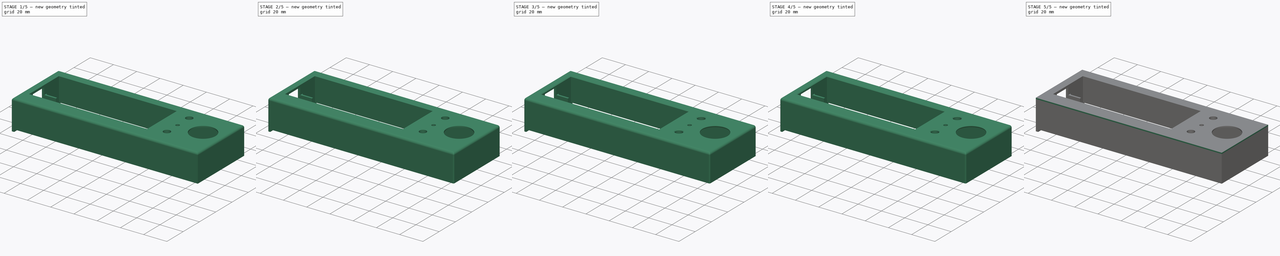
[diagram: build sequence overview — one tinted view per stage of 5, left to right]
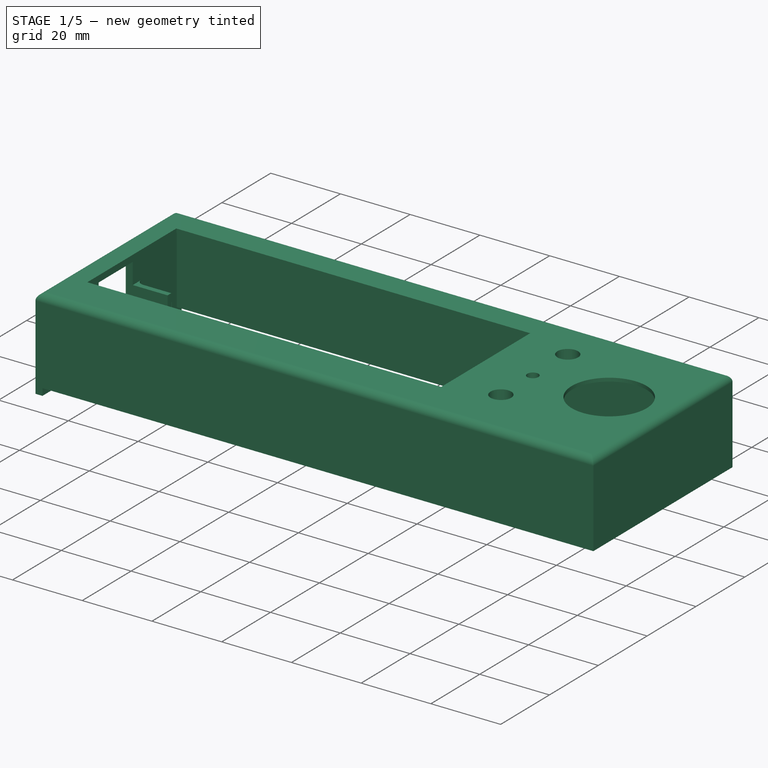
[diagram: stage 1 of 5 — iso view after this stage's code; geometry added in this stage tinted green]
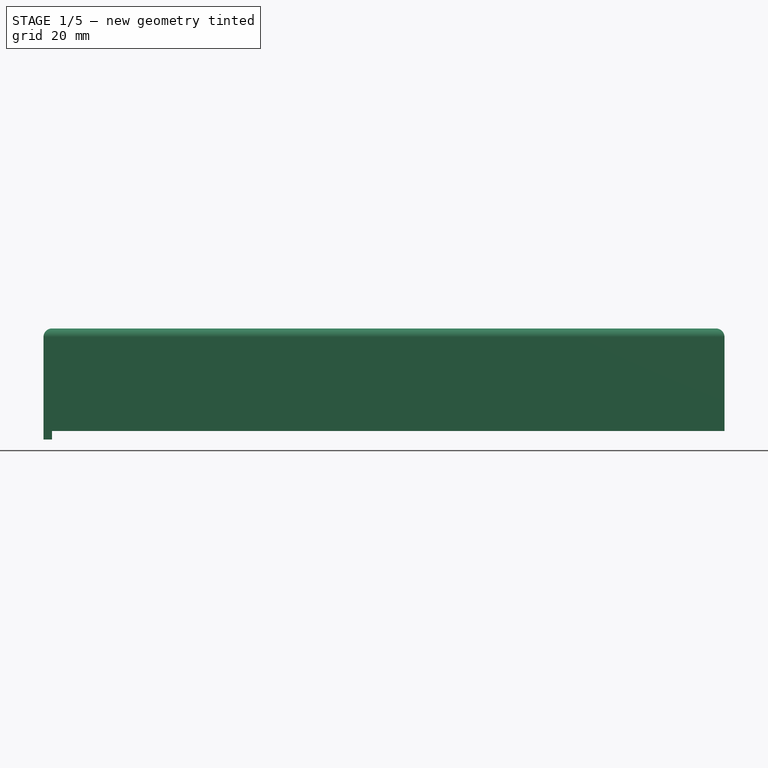
[diagram: stage 1 of 5 — front view after this stage's code; geometry added in this stage tinted green]
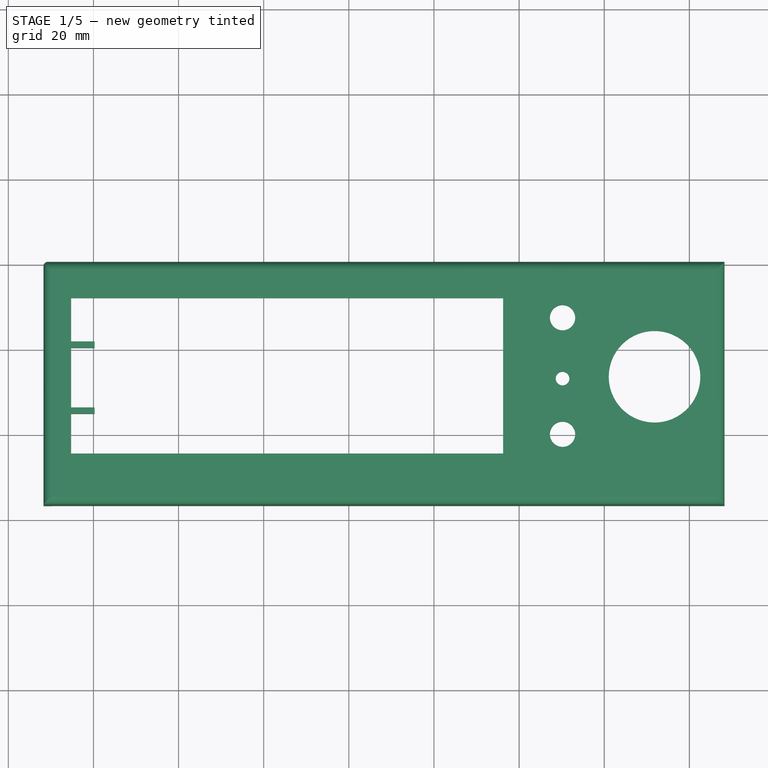
[diagram: stage 1 of 5 — top view after this stage's code; geometry added in this stage tinted green]
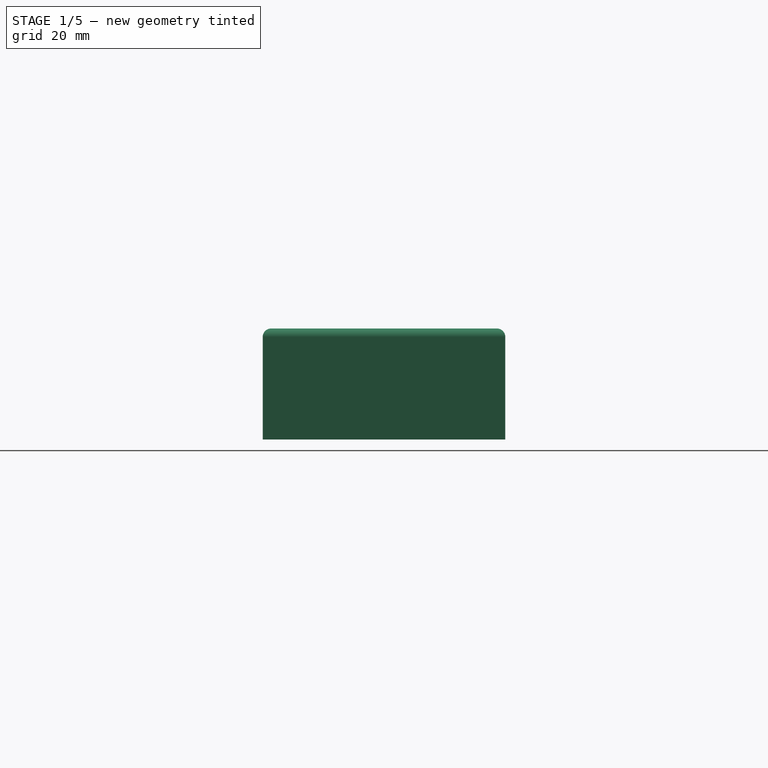
[diagram: stage 1 of 5 — right view after this stage's code; geometry added in this stage tinted green]
FCSTD DOCUMENT  (FreeCAD 0.15R4671 (Git))
Label: top_part
License: All rights reserved
LicenseURL: http://en.wikipedia.org/wiki/All_rights_reserved
objects: Sketcher::SketchObject×11, Part::Feature×11, PartDesign::Fillet×9, PartDesign::Pad×8, PartDesign::Chamfer×4, PartDesign::Pocket×3, Part::MultiFuse×1
note: 58 computed .brp shape members not serialized (recipe doc carries the construction recipe); baked Part::Feature solids carry a one-line shape summary decoded from their .brp

FEATURE [Sketcher::SketchObject] Sketch006
  Placement = pos=(0,0,23.1) rot=(1,0,0;3.14159rad)
  sketch-geometry (4):
    g0: Circle CenterX=80.3715 CenterY=-13.2991 CenterZ=0 NormalX=0 NormalY=0 NormalZ=1 Radius=0.9
    g1: Circle CenterX=80.3715 CenterY=-13.2991 CenterZ=0 NormalX=0 NormalY=0 NormalZ=1 Radius=3
    g2: Circle CenterX=80.3715 CenterY=26.6709 CenterZ=0 NormalX=0 NormalY=0 NormalZ=1 Radius=0.9
    g3: Circle CenterX=80.3715 CenterY=26.6709 CenterZ=0 NormalX=0 NormalY=0 NormalZ=1 Radius=3
  constraints (7):
    c: Radius(g0) = 0.9
    c: Coincident(g1,g0)
    c: Radius(g1) = 3
    c: DistanceY(g2,g0) = -39.97
    c: Radius(g2) = 0.9
    c: Coincident(g3,g2)
    c: Radius(g3) = 3
FEATURE [Part::Feature] Pad002001  label="Pad004"
  shape: bbox 160 x 57 x 26.1 mm, 32 faces (baked)
FEATURE [Part::Feature] Pad002002  label="Pad005"
  shape: bbox 160 x 57 x 26.1 mm, 32 faces (baked)
FEATURE [Part::Feature] Pad002003  label="Pad006"
  shape: bbox 160 x 57 x 26.1 mm, 32 faces (baked)
FEATURE [Part::Feature] Pad002004  label="Pad007"
  shape: bbox 160 x 57 x 26.1 mm, 32 faces (baked)
FEATURE [Part::Feature] Pad002005  label="Pad008"
  shape: bbox 160 x 57 x 26.1 mm, 32 faces (baked)
FEATURE [Part::Feature] Pad002006  label="Pad009"
  shape: bbox 160 x 57 x 26.1 mm, 32 faces (baked)
FEATURE [Part::Feature] Pad002007  label="Pad010"
  shape: bbox 160 x 57 x 26.1 mm, 32 faces (baked)
FEATURE [Part::Feature] Pad002008  label="Pad011"
  shape: bbox 160 x 57 x 26.1 mm, 32 faces (baked)
FEATURE [Part::Feature] Pad002009  label="Pad012"
  shape: bbox 160 x 57 x 26.1 mm, 32 faces (baked)
FEATURE [PartDesign::Fillet] Fillet
  Base = -> Pad002001 [Edge4,Edge2,Edge1,Edge3]
  Radius = 2
FEATURE [PartDesign::Fillet] Fillet001
  Base = -> Fillet [Edge45,Edge47]
  Radius = 1
FEATURE [PartDesign::Pad] Pad002013
  Length = 16.5
  Length2 = 100
  Placement = pos=(0,0,23.1) rot=(1,0,0;3.14159rad)
  Sketch = -> Sketch006
  Type = 0
FEATURE [Sketcher::SketchObject] Sketch012
  Placement = pos=(0,0,23.1) rot=(1,0,0;3.14159rad)
  sketch-geometry (4):
    g0: Circle CenterX=80.3715 CenterY=-13.2991 CenterZ=0 NormalX=0 NormalY=0 NormalZ=1 Radius=0.9
    g1: Circle CenterX=80.3715 CenterY=-13.2991 CenterZ=0 NormalX=0 NormalY=0 NormalZ=1 Radius=5.5
    g2: Circle CenterX=80.3715 CenterY=26.6709 CenterZ=0 NormalX=0 NormalY=0 NormalZ=1 Radius=0.9
    g3: Circle CenterX=80.3715 CenterY=26.6709 CenterZ=0 NormalX=0 NormalY=0 NormalZ=1 Radius=5.5
  constraints (7):
    c: Radius(g0) = 0.9
    c: Coincident(g1,g0)
    c: Radius(g1) = 5.5
    c: DistanceY(g2,g0) = -39.97
    c: Radius(g2) = 0.9
    c: Coincident(g3,g2)
    c: Radius(g3) = 5.5
FEATURE [PartDesign::Pad] Pad002014
  Length = 10
  Length2 = 100
  Placement = pos=(0,0,23.1) rot=(1,0,0;3.14159rad)
  Sketch = -> Sketch012
  Type = 0
FEATURE [Part::Feature] Fillet008_solid  label="Fillet008 (Solid)"
  shape: bbox 160 x 57 x 26.1 mm, 85 faces (baked)
FEATURE [Part::MultiFuse] Fusion
  Shapes = -> [Pad002014,Pad002013,Fillet008_solid]
FEATURE [Part::Feature] Fusion_solid  label="Fusion (Solid)"
  Placement = pos=(8.42933,17.0662,0) rot=(0,0,1;0rad)
  shape: bbox 160 x 57 x 26.1 mm, 101 faces (baked)
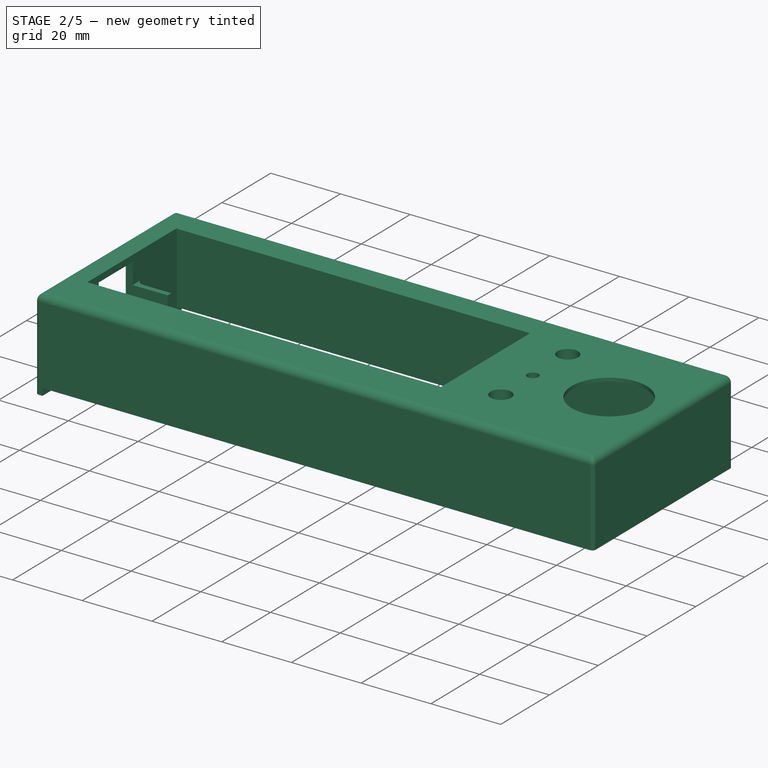
[diagram: stage 2 of 5 — iso view after this stage's code; geometry added in this stage tinted green]
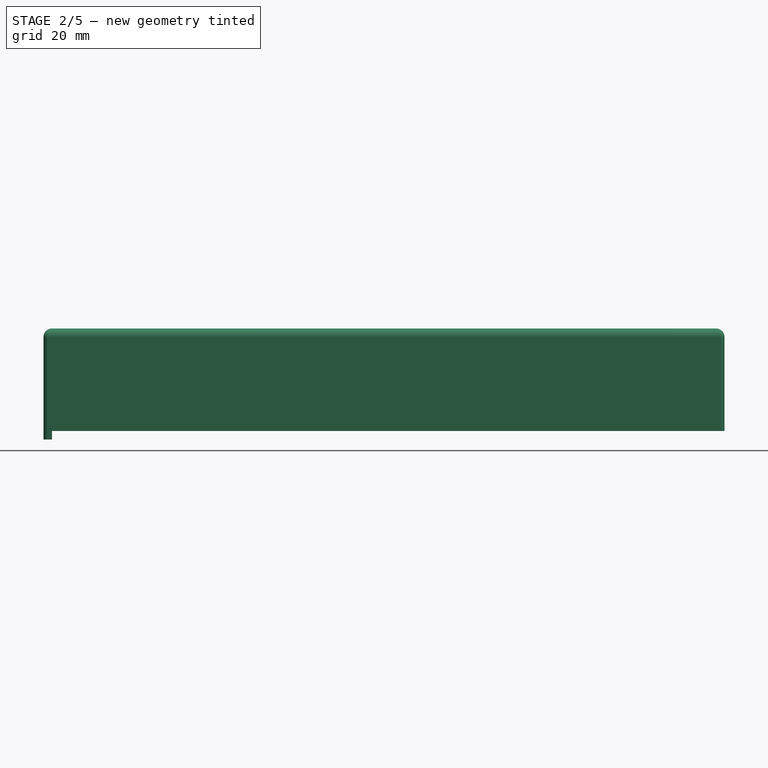
[diagram: stage 2 of 5 — front view after this stage's code; geometry added in this stage tinted green]
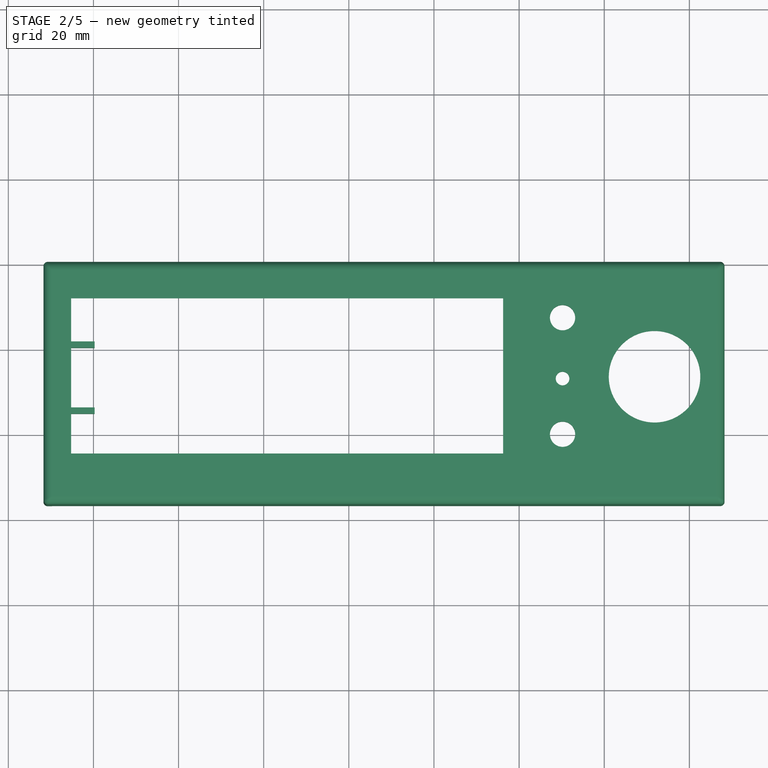
[diagram: stage 2 of 5 — top view after this stage's code; geometry added in this stage tinted green]
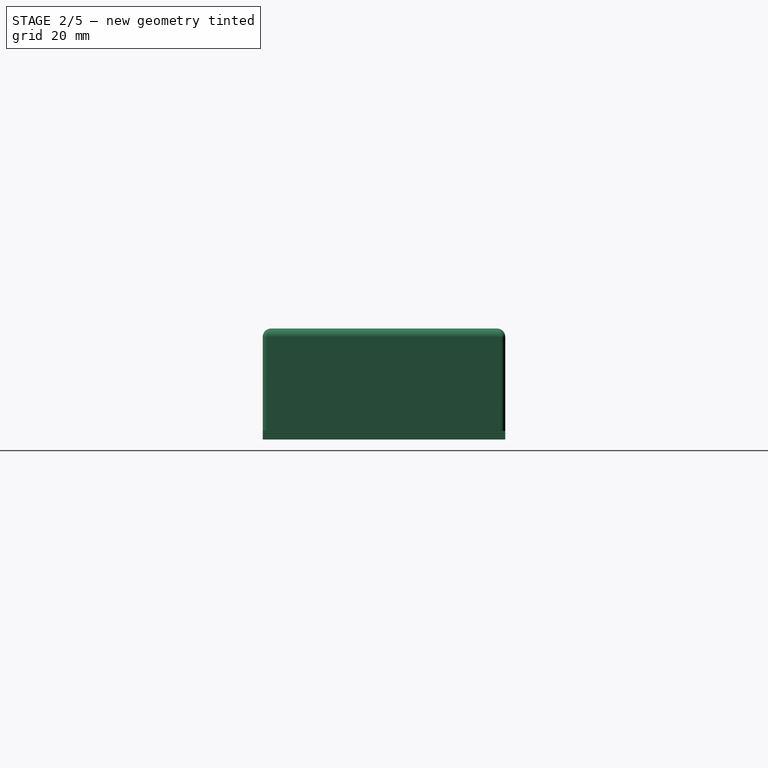
[diagram: stage 2 of 5 — right view after this stage's code; geometry added in this stage tinted green]
FEATURE [PartDesign::Fillet] Fillet002
  Base = -> Fillet001 [Edge6,Edge8]
  Radius = 1
FEATURE [PartDesign::Fillet] Fillet003
  Base = -> Fillet002 [Edge95]
  Radius = 1
FEATURE [PartDesign::Fillet] Fillet004
  Base = -> Fillet003 [Edge83,Edge62]
  Radius = 1
FEATURE [PartDesign::Fillet] Fillet005
  Base = -> Fillet004 [Edge47,Edge31,Edge44,Edge48]
  Radius = 2
FEATURE [Sketcher::SketchObject] Sketch007
  ExternalGeometry = -> [Fillet005]
  Placement = pos=(0,0,23.1) rot=(1,0,0;3.14159rad)
  Support = -> Fillet005 [Face23]
  sketch-geometry (4):
    g0: Circle CenterX=50.2115 CenterY=20.2109 CenterZ=0 NormalX=0 NormalY=0 NormalZ=1 Radius=5
    g1: Circle CenterX=50.2115 CenterY=20.2109 CenterZ=0 NormalX=0 NormalY=0 NormalZ=1 Radius=2.97
    g2: Circle CenterX=50.2115 CenterY=-7.17908 CenterZ=0 NormalX=0 NormalY=0 NormalZ=1 Radius=5
    g3: Circle CenterX=50.2115 CenterY=-7.17908 CenterZ=0 NormalX=0 NormalY=0 NormalZ=1 Radius=2.97
  constraints (8):
    c: Coincident(g0,g-3)
    c: Coincident(g1,g0)
    c: Radius(g1) = 2.97
    c: Radius(g0) = 5
    c: Coincident(g2,g-4)
    c: Coincident(g3,g2)
    c: Radius(g3) = 2.97
    c: Radius(g2) = 5
FEATURE [PartDesign::Pad] Pad002010
  Length = 2.5
  Length2 = 100
  Sketch = -> Sketch007
  Type = 0
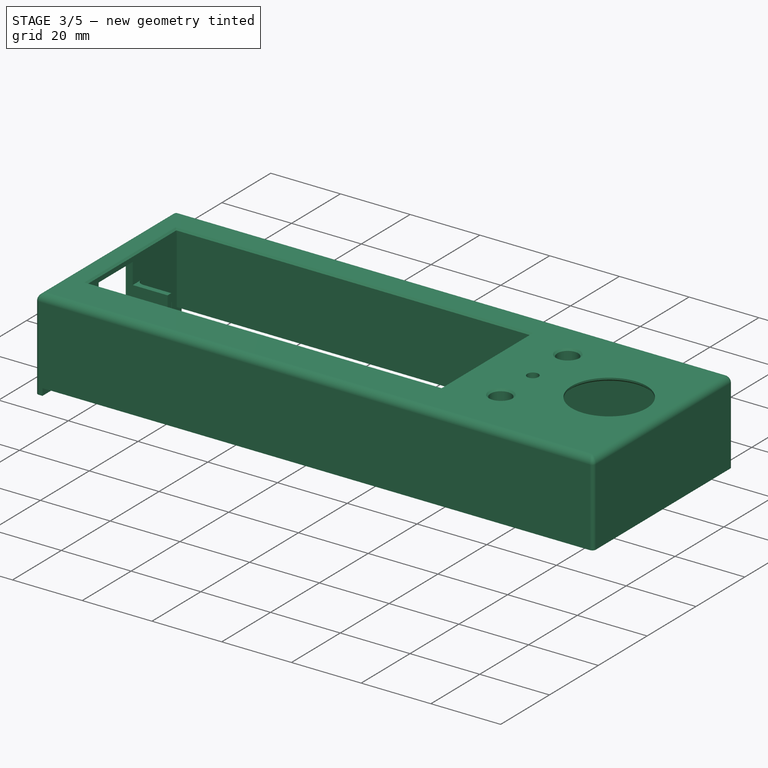
[diagram: stage 3 of 5 — iso view after this stage's code; geometry added in this stage tinted green]
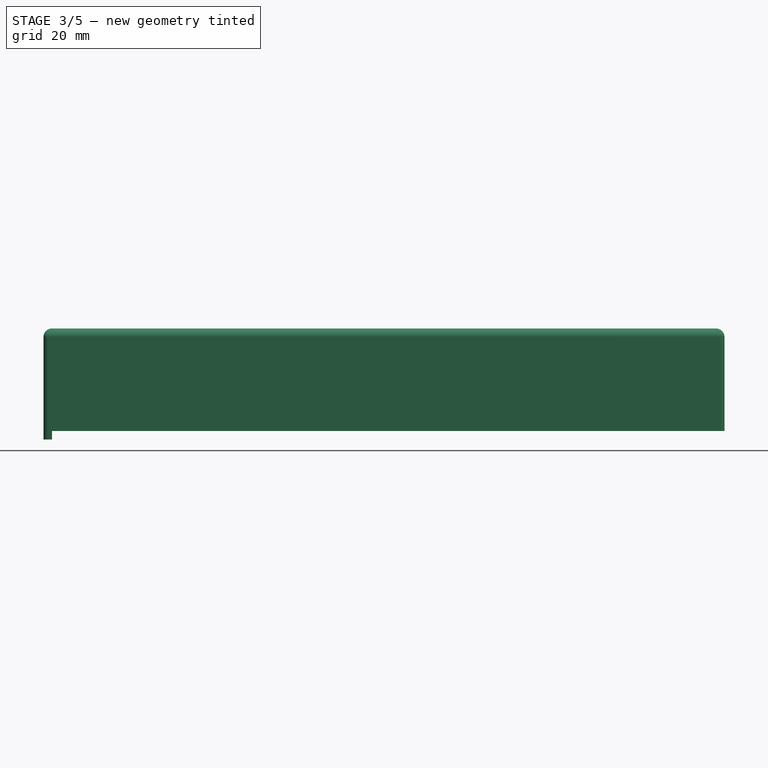
[diagram: stage 3 of 5 — front view after this stage's code; geometry added in this stage tinted green]
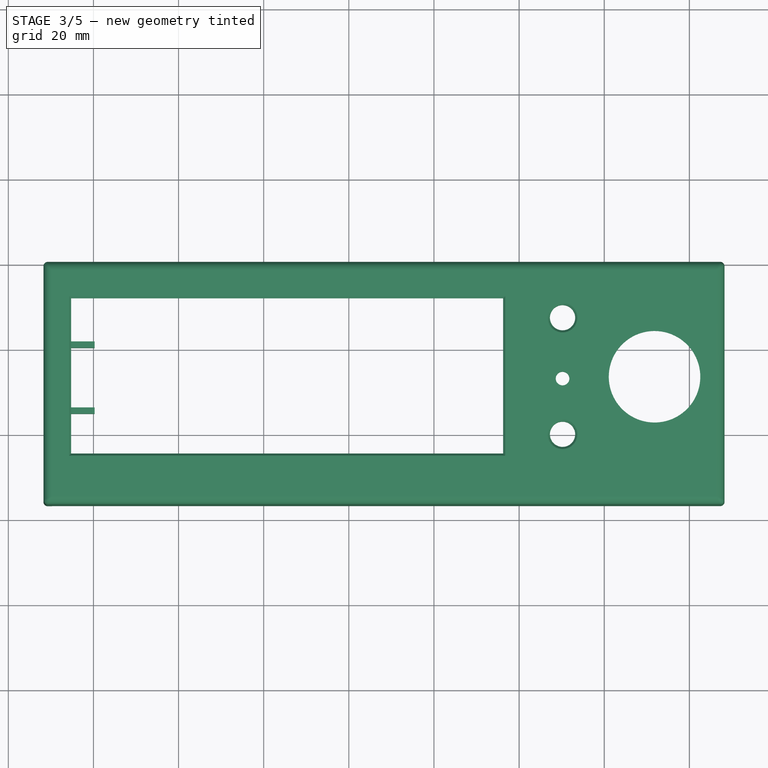
[diagram: stage 3 of 5 — top view after this stage's code; geometry added in this stage tinted green]
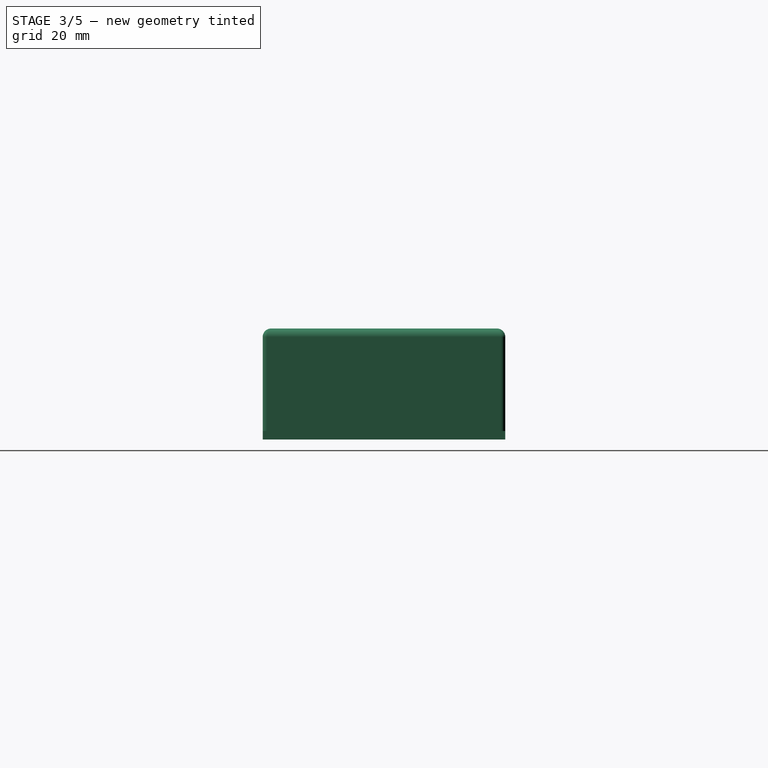
[diagram: stage 3 of 5 — right view after this stage's code; geometry added in this stage tinted green]
FEATURE [Sketcher::SketchObject] Sketch008
  ExternalGeometry = -> [Pad002010]
  Placement = pos=(0,0,23.1) rot=(1,0,0;3.14159rad)
  Support = -> Pad002010 [Face23]
  sketch-geometry (2):
    g0: Circle CenterX=50.2115 CenterY=7.13092 CenterZ=0 NormalX=0 NormalY=0 NormalZ=1 Radius=1.6
    g1: Circle CenterX=50.2115 CenterY=7.13092 CenterZ=0 NormalX=0 NormalY=0 NormalZ=1 Radius=3
  constraints (4):
    c: Coincident(g0,g-3)
    c: Coincident(g1,g0)
    c: Radius(g0) = 1.6
    c: Radius(g1) = 3
FEATURE [PartDesign::Pad] Pad002011
  Length = 1.5
  Length2 = 100
  Sketch = -> Sketch008
  Type = 0
FEATURE [PartDesign::Chamfer] Chamfer
  Base = -> Pad002011 [Edge120,Edge118,Edge114,Edge117]
  Size = 0.5
FEATURE [PartDesign::Chamfer] Chamfer001
  Base = -> Chamfer [Edge33,Edge35]
  Size = 0.5
FEATURE [PartDesign::Chamfer] Chamfer002
  Base = -> Chamfer001 [Edge36]
  Size = 0.5
FEATURE [PartDesign::Fillet] Fillet006
  Base = -> Chamfer002 [Edge22,Edge21,Edge23]
  Radius = 1
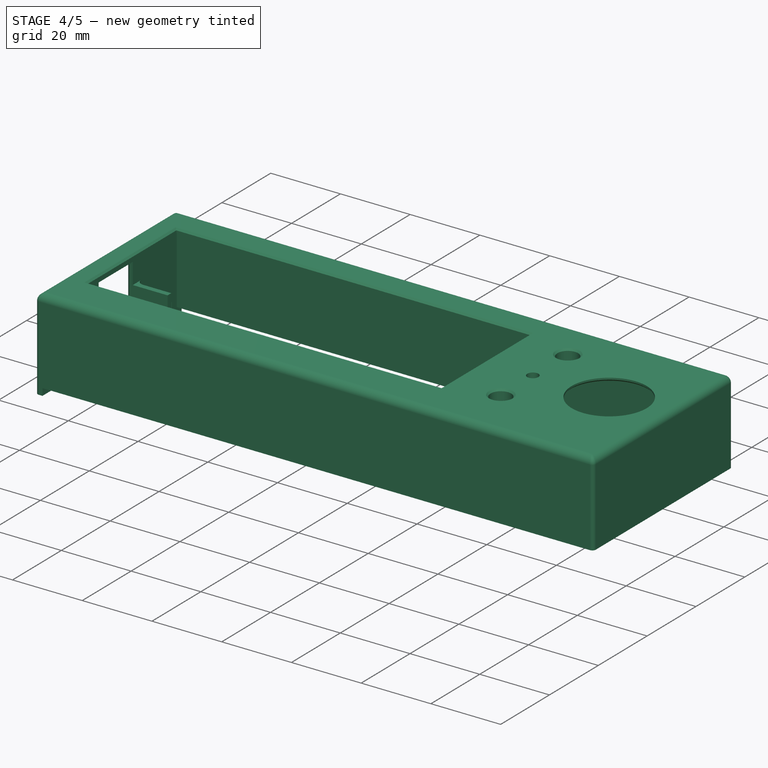
[diagram: stage 4 of 5 — iso view after this stage's code; geometry added in this stage tinted green]
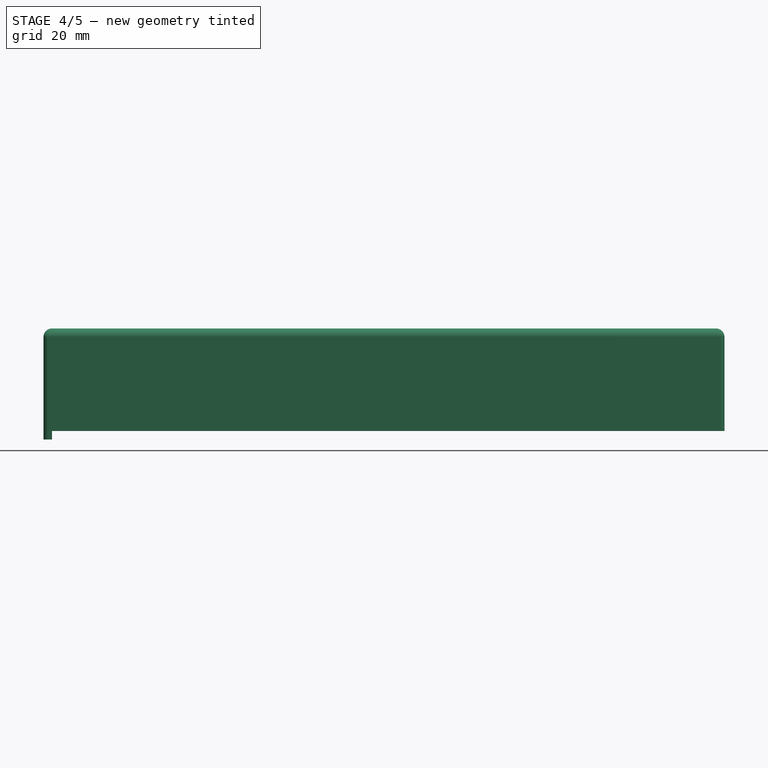
[diagram: stage 4 of 5 — front view after this stage's code; geometry added in this stage tinted green]
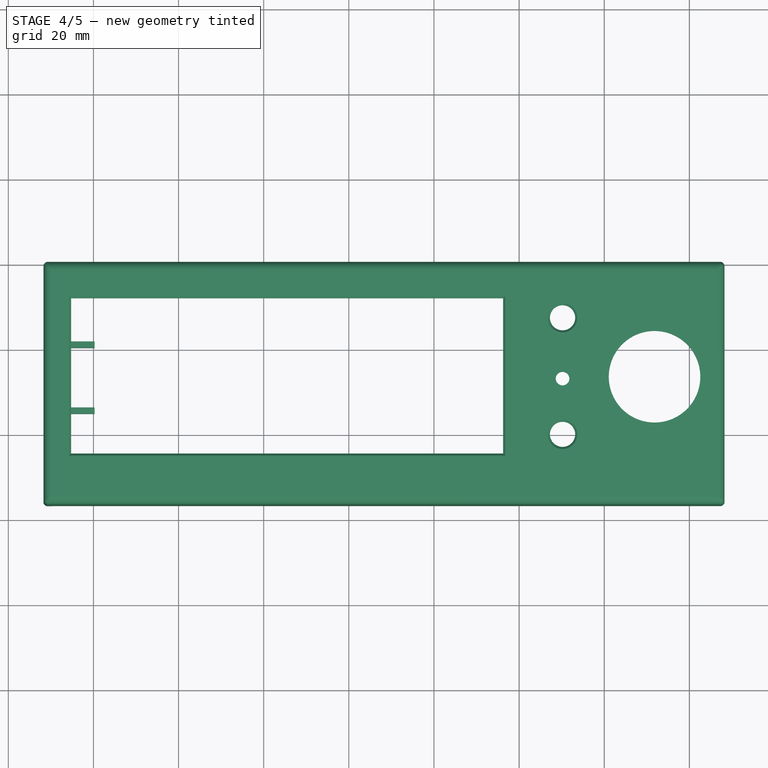
[diagram: stage 4 of 5 — top view after this stage's code; geometry added in this stage tinted green]
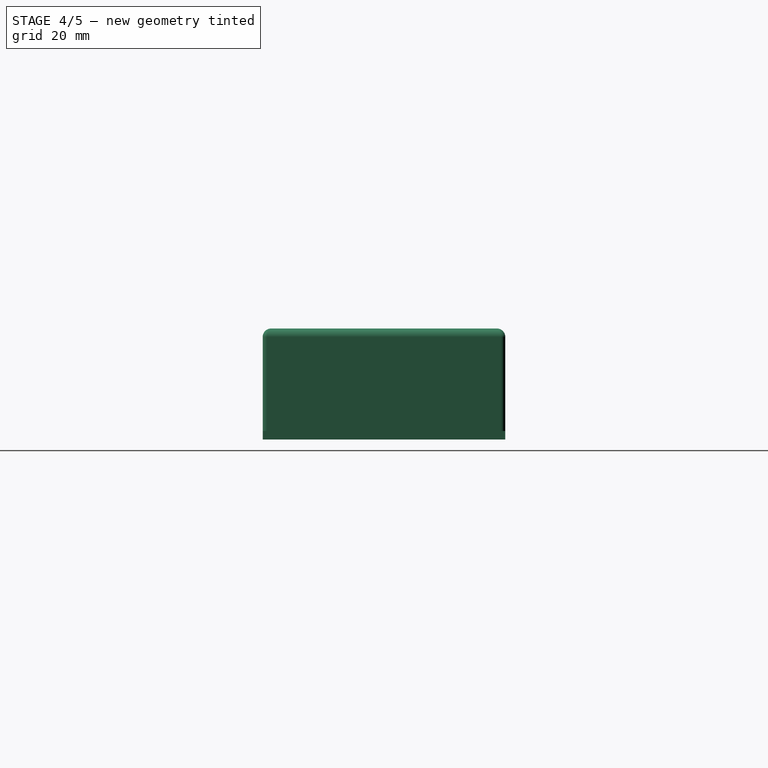
[diagram: stage 4 of 5 — right view after this stage's code; geometry added in this stage tinted green]
FEATURE [PartDesign::Chamfer] Chamfer003
  Base = -> Fillet006 [Edge110,Edge108,Edge103,Edge106]
  Size = 1
FEATURE [Sketcher::SketchObject] Sketch010
  ExternalGeometry = -> [Chamfer003]
  Placement = pos=(-69.7385,0,0) rot=(0.57735,0.57735,0.57735;2.0944rad)
  Support = -> Chamfer003 [Face4]
  sketch-geometry (4):
    g0: LineSegment StartX=1.79908 StartY=6.6 StartZ=0 EndX=-15.2009 EndY=6.6 EndZ=0
    g1: LineSegment StartX=-15.2009 StartY=6.6 StartZ=0 EndX=-15.2009 EndY=12.6 EndZ=0
    g2: LineSegment StartX=-15.2009 StartY=12.6 StartZ=0 EndX=1.79908 EndY=12.6 EndZ=0
    g3: LineSegment StartX=1.79908 StartY=12.6 StartZ=0 EndX=1.79908 EndY=6.6 EndZ=0
  constraints (12):
    c: Coincident(g0,g1)
    c: Coincident(g1,g2)
    c: Coincident(g2,g3)
    c: Coincident(g3,g0)
    c: Horizontal(g0)
    c: Horizontal(g2)
    c: Vertical(g1)
    c: Vertical(g3)
    c: Distance(g1) = 6
    c: Distance(g0) = 17
    c: DistanceX(g-5,g2) = 1.5
    c: DistanceY(g0,g-6) = 0
FEATURE [PartDesign::Pad] Pad002012
  Length = 10
  Length2 = 100
  Sketch = -> Sketch010
  Type = 0
FEATURE [Sketcher::SketchObject] Sketch011
  ExternalGeometry = -> [Pad002012]
  Placement = pos=(-59.7385,0,0) rot=(0.57735,0.57735,0.57735;2.0944rad)
  Support = -> Pad002012 [Face1]
  sketch-geometry (4):
    g0: LineSegment StartX=-13.7009 StartY=12.6 StartZ=0 EndX=0.299084 EndY=12.6 EndZ=0
    g1: LineSegment StartX=0.299084 StartY=12.6 StartZ=0 EndX=0.299084 EndY=6.6 EndZ=0
    g2: LineSegment StartX=0.299084 StartY=6.6 StartZ=0 EndX=-13.7009 EndY=6.6 EndZ=0
    g3: LineSegment StartX=-13.7009 StartY=6.6 StartZ=0 EndX=-13.7009 EndY=12.6 EndZ=0
  constraints (12):
    c: Coincident(g0,g1)
    c: Coincident(g1,g2)
    c: Coincident(g2,g3)
    c: Coincident(g3,g0)
    c: Horizontal(g0)
    c: Horizontal(g2)
    c: Vertical(g1)
    c: Vertical(g3)
    c: DistanceY(g0,g-4) = 0
    c: DistanceX(g0,g-4) = -1.5
    c: Distance(g2) = 14
    c: Distance(g3) = 6
FEATURE [PartDesign::Pocket] Pocket002
  Length = 10
  Sketch = -> Sketch011
  Type = 0
FEATURE [PartDesign::Fillet] Fillet007
  Base = -> Pocket002 [Edge31]
  Radius = 2
FEATURE [PartDesign::Fillet] Fillet008
  Base = -> Fillet007 [Edge8]
  Radius = 2
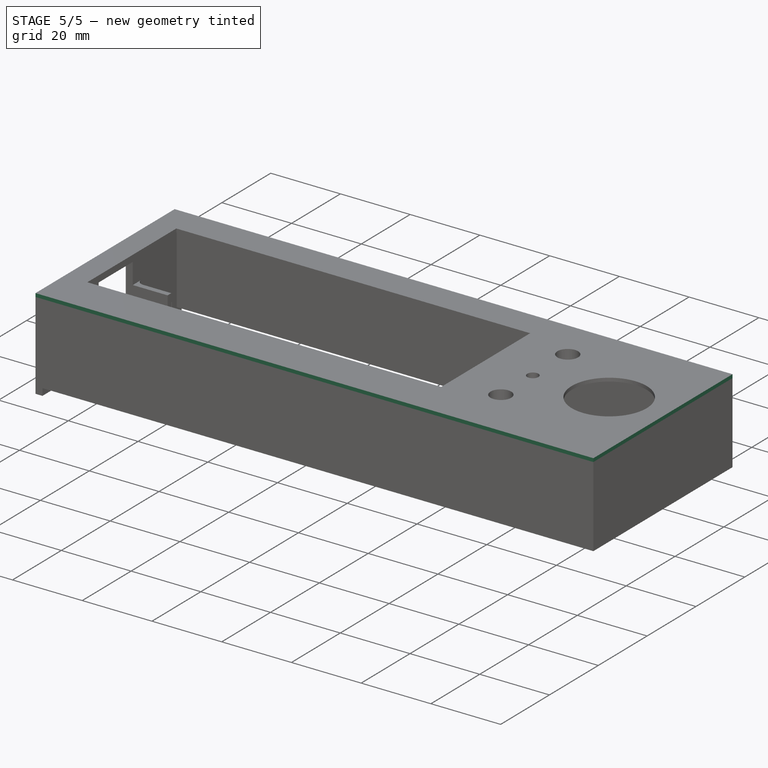
[diagram: stage 5 of 5 — iso view after this stage's code; geometry added in this stage tinted green]
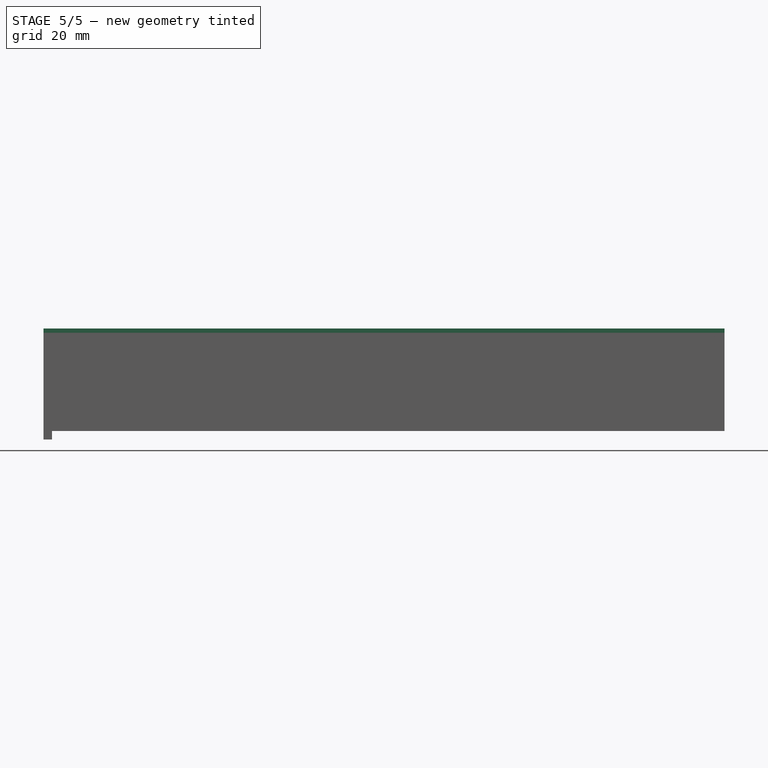
[diagram: stage 5 of 5 — front view after this stage's code; geometry added in this stage tinted green]
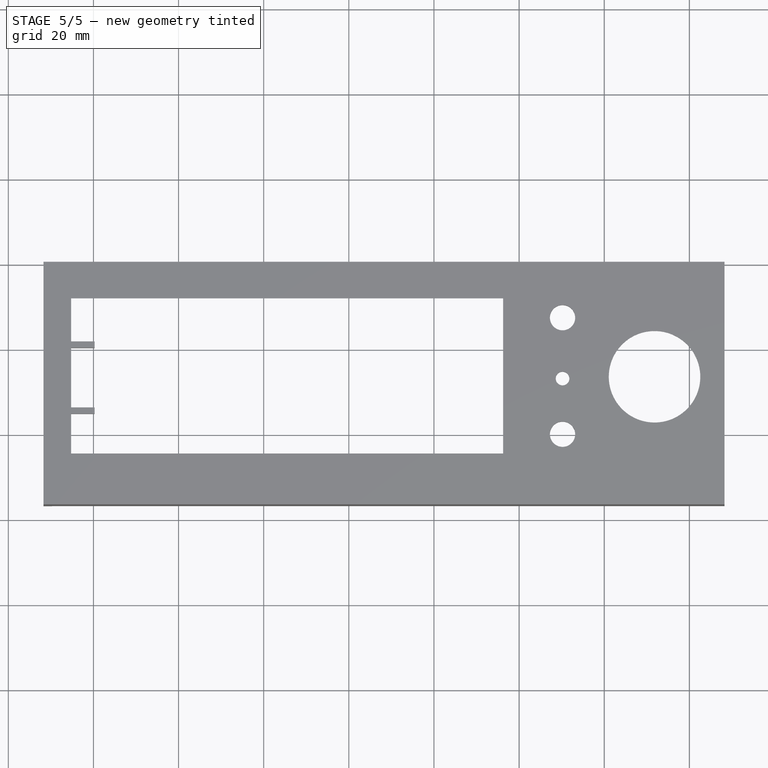
[diagram: stage 5 of 5 — top view after this stage's code; geometry added in this stage tinted green]
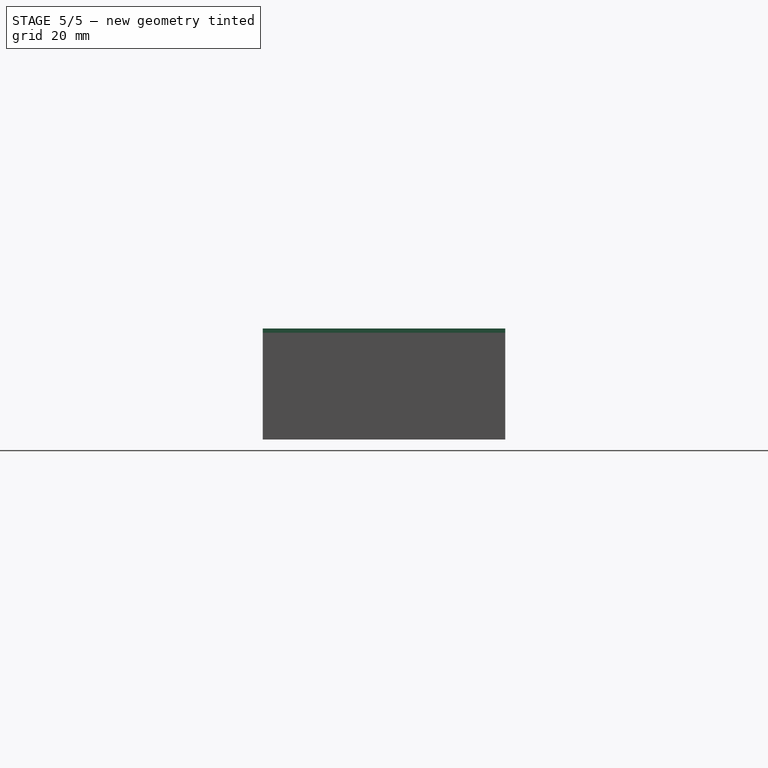
[diagram: stage 5 of 5 — right view after this stage's code; geometry added in this stage tinted green]
FEATURE [Sketcher::SketchObject] Sketch
  sketch-geometry (8):
    g0: LineSegment StartX=-71.7385 StartY=20.3141 StartZ=0 EndX=88.2615 EndY=20.3141 EndZ=0
    g1: LineSegment StartX=88.2615 StartY=20.3141 StartZ=0 EndX=88.2615 EndY=-36.6859 EndZ=0
    g2: LineSegment StartX=88.2615 StartY=-36.6859 StartZ=0 EndX=-71.7385 EndY=-36.6859 EndZ=0
    g3: LineSegment StartX=-71.7385 StartY=-36.6859 StartZ=0 EndX=-71.7385 EndY=20.3141 EndZ=0
    g4: LineSegment StartX=-69.7385 StartY=18.3141 StartZ=0 EndX=86.2615 EndY=18.3141 EndZ=0
    g5: LineSegment StartX=86.2615 StartY=18.3141 StartZ=0 EndX=86.2615 EndY=-34.6859 EndZ=0
    g6: LineSegment StartX=86.2615 StartY=-34.6859 StartZ=0 EndX=-69.7385 EndY=-34.6859 EndZ=0
    g7: LineSegment StartX=-69.7385 StartY=-34.6859 StartZ=0 EndX=-69.7385 EndY=18.3141 EndZ=0
  constraints (22):
    c: Coincident(g0,g1)
    c: Coincident(g1,g2)
    c: Coincident(g2,g3)
    c: Coincident(g3,g0)
    c: Horizontal(g0)
    c: Horizontal(g2)
    c: Vertical(g1)
    c: Vertical(g3)
    c: Distance(g0) = 160
    c: Distance(g3) = 57
    c: Coincident(g4,g5)
    c: Coincident(g5,g6)
    c: Coincident(g6,g7)
    c: Coincident(g7,g4)
    c: Horizontal(g4)
    c: Horizontal(g6)
    c: Vertical(g5)
    c: Vertical(g7)
    c: Distance(g4) = 156
    c: DistanceY(g7) = 53
    c: DistanceX(g4,g0) = -2
    c: DistanceY(g4,g0) = 2
FEATURE [PartDesign::Pad] Pad
  Length = 23.1
  Length2 = 100
  Sketch = -> Sketch
  Type = 0
FEATURE [Sketcher::SketchObject] Sketch001
  ExternalGeometry = -> [Pad]
  Placement = pos=(0,0,23.1) rot=(0,0,1;0rad)
  Support = -> Pad [Face10]
  sketch-geometry (4):
    g0: LineSegment StartX=-71.7385 StartY=20.3141 StartZ=0 EndX=88.2615 EndY=20.3141 EndZ=0
    g1: LineSegment StartX=88.2615 StartY=20.3141 StartZ=0 EndX=88.2615 EndY=-36.6859 EndZ=0
    g2: LineSegment StartX=88.2615 StartY=-36.6859 StartZ=0 EndX=-71.7385 EndY=-36.6859 EndZ=0
    g3: LineSegment StartX=-71.7385 StartY=-36.6859 StartZ=0 EndX=-71.7385 EndY=20.3141 EndZ=0
  constraints (10):
    c: Coincident(g0,g1)
    c: Coincident(g1,g2)
    c: Coincident(g2,g3)
    c: Coincident(g3,g0)
    c: Horizontal(g0)
    c: Horizontal(g2)
    c: Vertical(g1)
    c: Vertical(g3)
    c: Coincident(g0,g-5)
    c: Coincident(g1,g-7)
FEATURE [PartDesign::Pad] Pad001
  Length = 1
  Length2 = 100
  Sketch = -> Sketch001
  Type = 0
FEATURE [Sketcher::SketchObject] Sketch002
  ExternalGeometry = -> [Pad001]
  Placement = pos=(0,0,24.1) rot=(0,0,1;0rad)
  Support = -> Pad001 [Face15]
  sketch-geometry (8):
    g0: LineSegment StartX=-65.2385 StartY=11.7141 StartZ=0 EndX=36.2515 EndY=11.7141 EndZ=0
    g1: LineSegment StartX=36.2515 StartY=11.7141 StartZ=0 EndX=36.2515 EndY=-24.7459 EndZ=0
    g2: LineSegment StartX=36.2515 StartY=-24.7459 StartZ=0 EndX=-65.2385 EndY=-24.7459 EndZ=0
    g3: LineSegment StartX=-65.2385 StartY=-24.7459 StartZ=0 EndX=-65.2385 EndY=11.7141 EndZ=0
    g4: Circle CenterX=71.8215 CenterY=-6.71092 CenterZ=0 NormalX=0 NormalY=0 NormalZ=1 Radius=10.75
    g5: Circle CenterX=50.2115 CenterY=-20.2109 CenterZ=0 NormalX=0 NormalY=0 NormalZ=1 Radius=2.97
    g6: Circle CenterX=50.2115 CenterY=7.17908 CenterZ=0 NormalX=0 NormalY=0 NormalZ=1 Radius=2.97
    g7: Circle CenterX=50.2115 CenterY=-7.13092 CenterZ=0 NormalX=0 NormalY=0 NormalZ=1 Radius=1.6
  constraints (24):
    c: Coincident(g0,g1)
    c: Coincident(g1,g2)
    c: Coincident(g2,g3)
    c: Coincident(g3,g0)
    c: Horizontal(g0)
    c: Horizontal(g2)
    c: Vertical(g1)
    c: Vertical(g3)
    c: Distance(g0) = 101.49
    c: DistanceY(g0,g2) = -36.46
    c: DistanceX(g0,g-4) = -6.5
    c: Radius(g4) = 10.75
    c: DistanceX(g6,g-6) = 38.05
    c: DistanceY(g6,g4) = -13.89
    c: DistanceX(g5,g-6) = 38.05
    c: DistanceX(g4,g-6) = 16.44
    c: DistanceX(g7,g-6) = 38.05
    c: Radius(g6) = 2.97
    c: Radius(g5) = 2.97
    c: Radius(g7) = 1.6
    c: DistanceY(g5,g4) = 13.5
    c: DistanceY(g2,g-5) = -11.94
    c: DistanceY(g6,g-6) = 13.135
    c: DistanceY(g6,g7) = -14.31
FEATURE [PartDesign::Pocket] Pocket
  Length = 1
  Sketch = -> Sketch002
  Type = 0
FEATURE [Sketcher::SketchObject] Sketch003
  ExternalGeometry = -> [Pocket]
  Placement = pos=(-71.7385,0,0) rot=(0.57735,-0.57735,-0.57735;2.0944rad)
  Support = -> Pocket [Face5]
  sketch-geometry (12):
    g0: LineSegment StartX=-16.3141 StartY=2.1 StartZ=0 EndX=-10.3141 EndY=2.1 EndZ=0
    g1: LineSegment StartX=-10.3141 StartY=2.1 StartZ=0 EndX=-10.3141 EndY=0 EndZ=0
    g2: LineSegment StartX=-10.3141 StartY=0 StartZ=0 EndX=-16.3141 EndY=0 EndZ=0
    g3: LineSegment StartX=-16.3141 StartY=0 StartZ=0 EndX=-16.3141 EndY=2.1 EndZ=0
    g4: LineSegment StartX=-0.299084 StartY=18.6 StartZ=0 EndX=13.7009 EndY=18.6 EndZ=0
    g5: LineSegment StartX=13.7009 StartY=18.6 StartZ=0 EndX=13.7009 EndY=6.6 EndZ=0
    g6: LineSegment StartX=13.7009 StartY=6.6 StartZ=0 EndX=-0.299084 EndY=6.6 EndZ=0
    g7: LineSegment StartX=-0.299084 StartY=6.6 StartZ=0 EndX=-0.299084 EndY=18.6 EndZ=0
    g8: LineSegment StartX=26.6859 StartY=2.1 StartZ=0 EndX=32.6859 EndY=2.1 EndZ=0
    g9: LineSegment StartX=32.6859 StartY=2.1 StartZ=0 EndX=32.6859 EndY=0 EndZ=0
    g10: LineSegment StartX=32.6859 StartY=0 StartZ=0 EndX=26.6859 EndY=0 EndZ=0
    g11: LineSegment StartX=26.6859 StartY=0 StartZ=0 EndX=26.6859 EndY=2.1 EndZ=0
  constraints (36):
    c: Coincident(g0,g1)
    c: Coincident(g1,g2)
    c: Coincident(g2,g3)
    c: Coincident(g3,g0)
    c: Horizontal(g0)
    c: Horizontal(g2)
    c: Vertical(g1)
    c: Vertical(g3)
    c: Distance(g0) = 6
    c: Distance(g3) = 2.1
    c: DistanceX(g2,g-5) = -4
    c: DistanceY(g2,g-5) = 0
    c: Coincident(g4,g5)
    c: Coincident(g5,g6)
    c: Coincident(g6,g7)
    c: Coincident(g7,g4)
    c: Horizontal(g4)
    c: Horizontal(g6)
    c: Vertical(g5)
    c: Vertical(g7)
    c: Distance(g4) = 14
    c: DistanceY(g7) = 12
    c: DistanceY(g6,g-5) = -6.6
    c: DistanceX(g6,g-5) = -20.015
    c: Coincident(g8,g9)
    c: Coincident(g9,g10)
    c: Coincident(g10,g11)
    c: Coincident(g11,g8)
    c: Horizontal(g8)
    c: Horizontal(g10)
    c: Vertical(g9)
    c: Vertical(g11)
    c: Distance(g8) = 6
    c: Distance(g11) = 2.1
    c: DistanceX(g9,g-5) = 4
    c: DistanceY(g9,g-5) = 0
FEATURE [PartDesign::Pocket] Pocket001
  Length = 5
  Sketch = -> Sketch003
  Type = 0
FEATURE [Sketcher::SketchObject] Sketch005
  ExternalGeometry = -> [Pocket001]
  Placement = pos=(-71.7385,0,0) rot=(0.57735,-0.57735,-0.57735;2.0944rad)
  Support = -> Pocket001 [Face5]
  sketch-geometry (4):
    g0: LineSegment StartX=-20.3141 StartY=0 StartZ=0 EndX=36.6859 EndY=0 EndZ=0
    g1: LineSegment StartX=36.6859 StartY=0 StartZ=0 EndX=36.6859 EndY=-2 EndZ=0
    g2: LineSegment StartX=36.6859 StartY=-2 StartZ=0 EndX=-20.3141 EndY=-2 EndZ=0
    g3: LineSegment StartX=-20.3141 StartY=-2 StartZ=0 EndX=-20.3141 EndY=0 EndZ=0
  constraints (11):
    c: Coincident(g0,g1)
    c: Coincident(g1,g2)
    c: Coincident(g2,g3)
    c: Coincident(g3,g0)
    c: Horizontal(g0)
    c: Horizontal(g2)
    c: Vertical(g1)
    c: Vertical(g3)
    c: Coincident(g0,g-11)
    c: Coincident(g0,g-10)
    c: Distance(g1) = 2
FEATURE [PartDesign::Pad] Pad002
  Length = 2
  Length2 = 100
  Reversed = true
  Sketch = -> Sketch005
  Type = 0
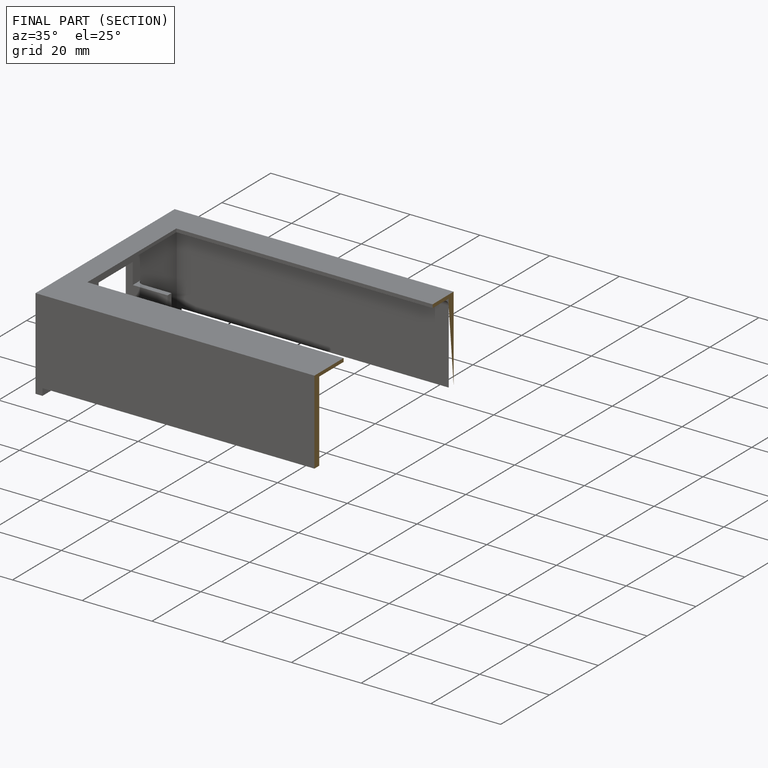
[diagram: finished part — half-section view (interior)]
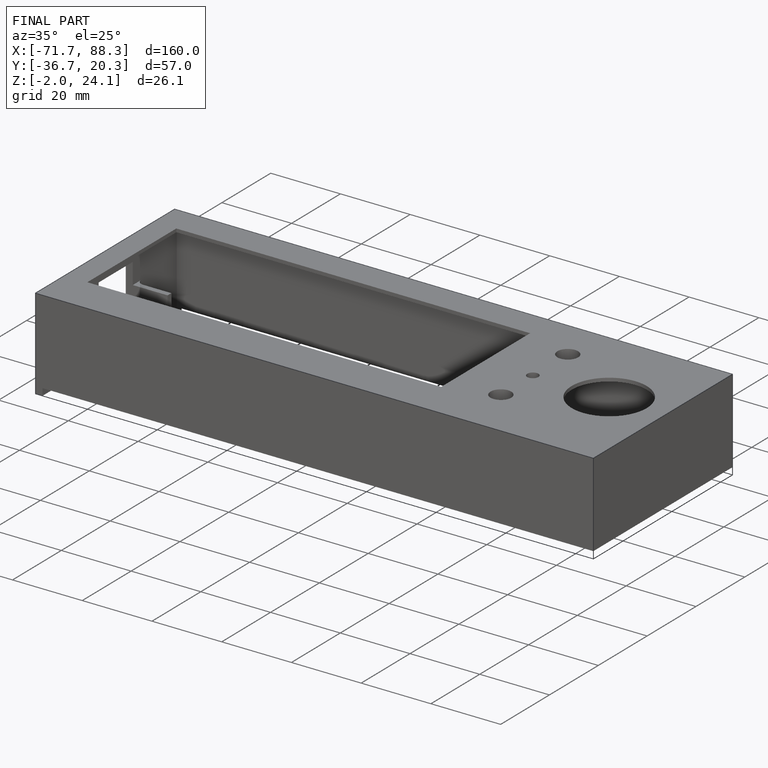
[diagram: finished part — iso view with bounding-box wireframe]
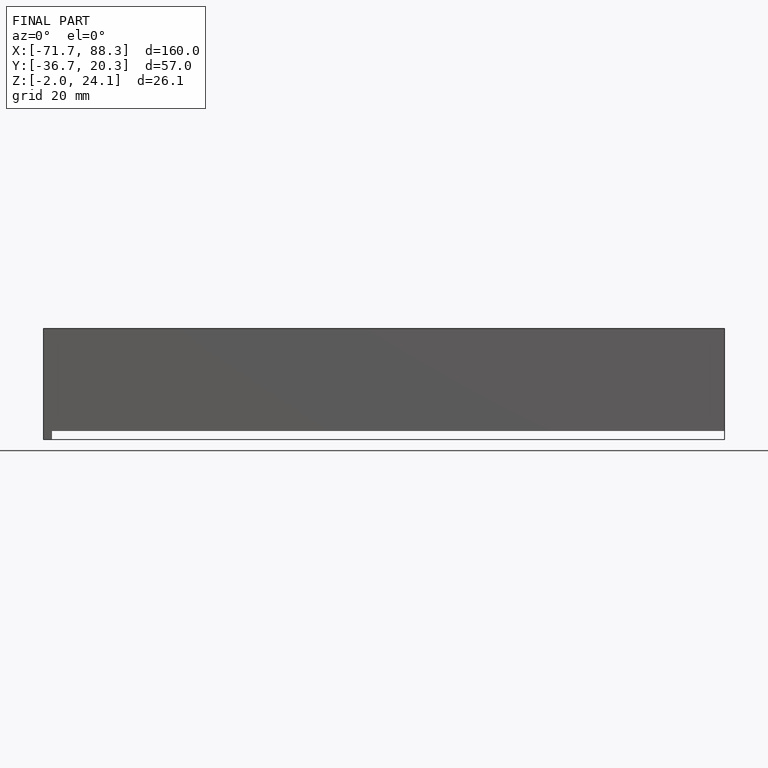
[diagram: finished part — front view with bounding-box wireframe]
